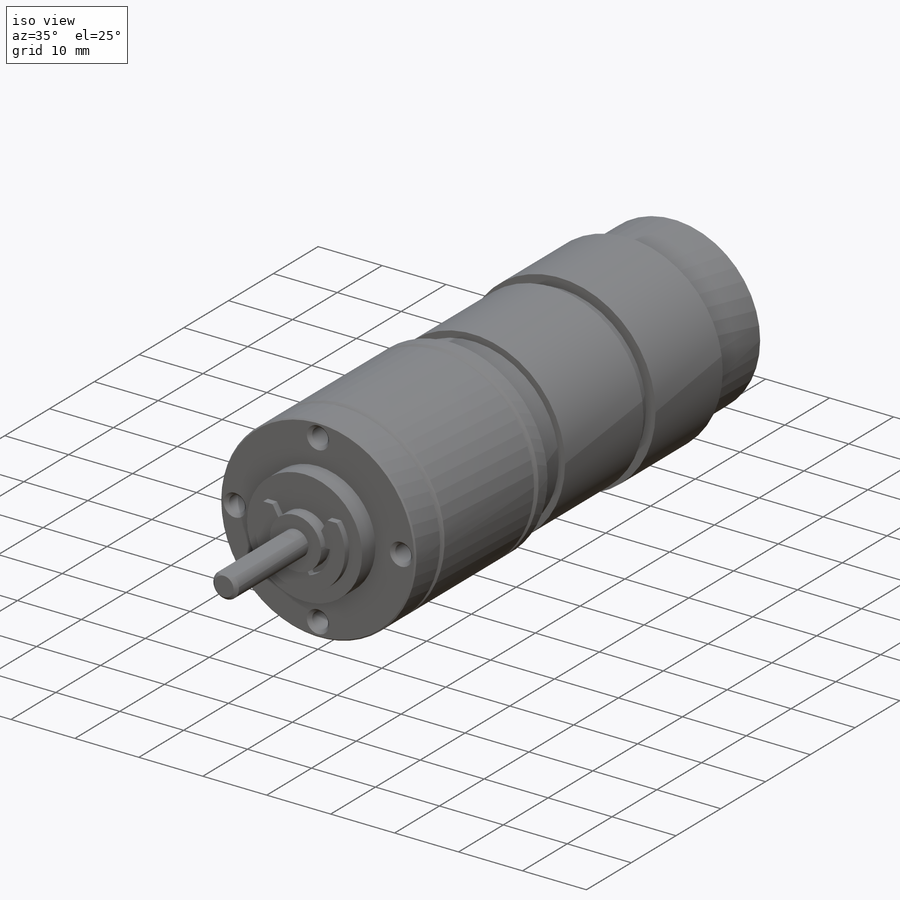
[diagram: iso view]
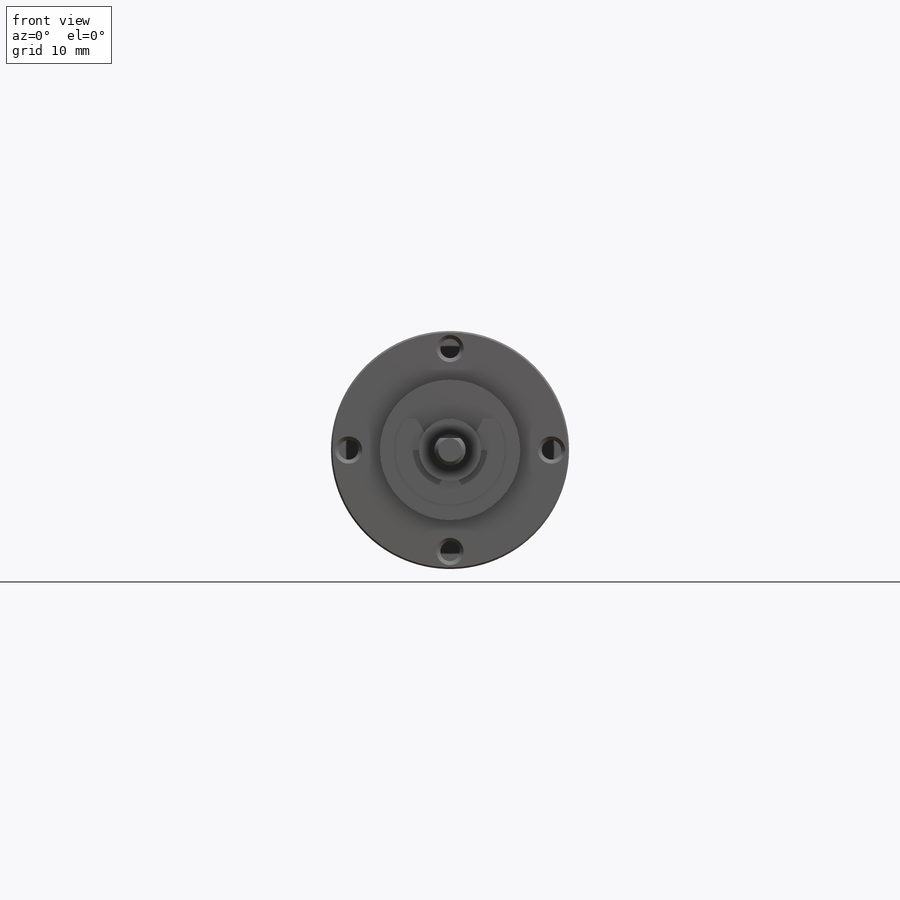
[diagram: front view]
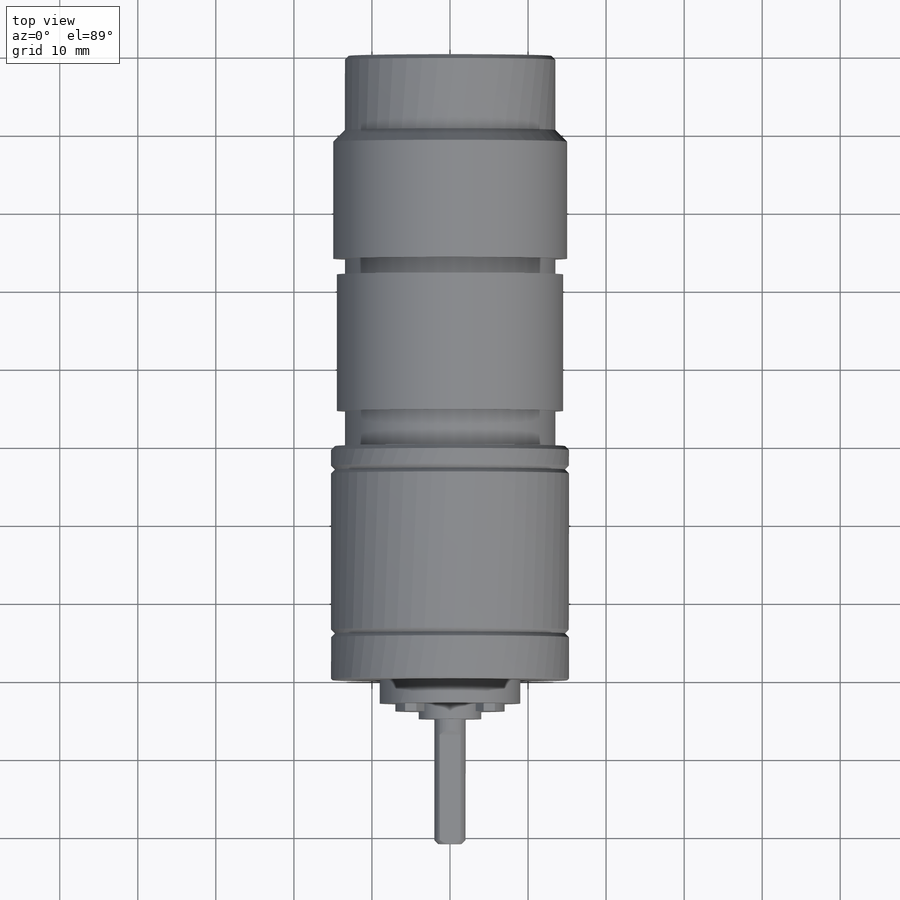
[diagram: top view]
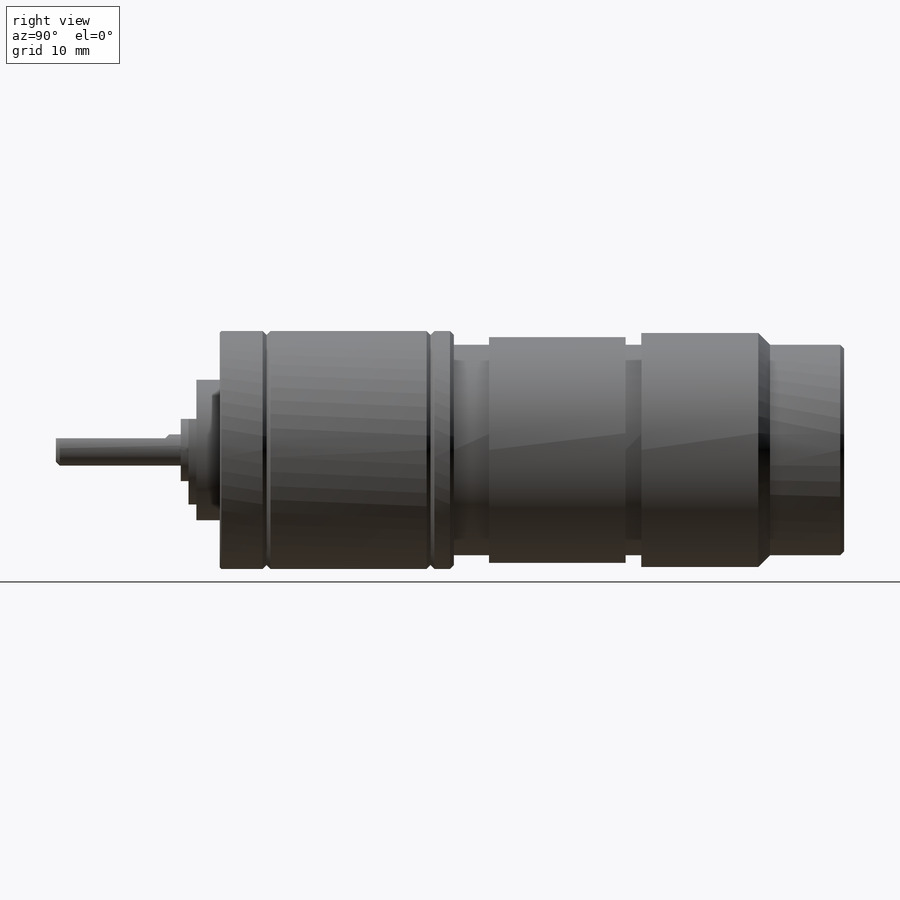
[diagram: right view]
SOLIDWORKS PART (.sldprt)
format: sldprt  version: not decoded by parser v0  size: 467,968 bytes
history: native  units: mm
features: sketch x10, extrude x7, chamfer x7, cut_extrude x2, material x1, revolve x1, mirror x1, boolean_combine x1, thread x1, pattern_circular x1 (+12 scaffold rows collapsed)
feature tree (44):
  scaffold x12  (default folders/planes/origin — collapsed)
  material  "Material <not specified>"
  sketch  "Sketch1"  dims[D1=30.5mm]
  extrude  "Boss-Extrude1"  Depth=6mm
  sketch  "Sketch2"  dims[D1=0.0mm]
  extrude  "Boss-Extrude2"  Depth=21mm
  sketch  "Sketch3"  dims[D1=0.0mm]
  extrude  "Boss-Extrude3"  Depth=3mm
  chamfer  "Chamfer2"  Distance=0.5mm Angle=45deg
  chamfer  "Chamfer3"  Distance=0.5mm Angle=45deg
  chamfer  "Chamfer4"  Distance=0.5mm Angle=45deg
  chamfer  "Chamfer5"  Distance=0.2mm Angle=45deg
  sketch  "Sketch4"  dims[D1=18.0mm]
  extrude  "Boss-Extrude4"  Depth=3mm
  chamfer  "Chamfer6"  Distance=0.5mm Angle=45deg
  sketch  "Sketch5"  dims[D1=4.0mm]
  extrude  "Boss-Extrude5"  Depth=18mm
  sketch  "Sketch6"  dims[D1=1.5mm]
  cut_extrude  "Cut-Extrude1"  Depth=14mm
  chamfer  "Chamfer7"  Distance=0.5mm Angle=45deg
  sketch  "Sketch7"  dims[c1.D1=4.5mm c1.D2=27.0mm c1.D3=24.0mm c1.D4=2.0mm c1.D5=29.0mm c1.D6=30.0mm c1.D7=27.0mm c1.D8=50.0mm c1.D9=11.0mm c1.D10=~2.090861mm c2.D10=45.0deg c2.D11=0.5mm]
  revolve  "Revolve2"  Angle=360deg
  sketch  "Sketch8"  dims[D1=8.0mm]
  extrude  "Boss-Extrude6"  Depth=2mm
  sketch  "Sketch9"  dims[c1.D1=14.0mm c1.D2=9.5mm c1.D3=~2.739618mm c2.D3=30.0deg c2.D4=~5.296037mm c3.D4=30.0deg]
  extrude  "Boss-Extrude7"  Depth=1mm
  mirror  "Mirror1"
  boolean_combine  "Combine1"
  sketch  "Sketch10"  dims[D1=26.0mm D2=2.5mm]
  cut_extrude  "Cut-Extrude2"  [1 undecoded]
  thread  "Cosmetic Thread1"  Diameter=3mm  [1 undecoded]
  chamfer  "Chamfer8"  Distance=0.5mm Angle=45deg
  pattern_circular  "CirPattern1"  Count=4 Angle=360deg
decode coverage: 28 of 31 modeling features carry decoded parameters
note: ~ marks probable driven/reference dimensions
note: 2 parameter values undecoded
note: suppression state not decoded; provenance and decode notes live in map.json
